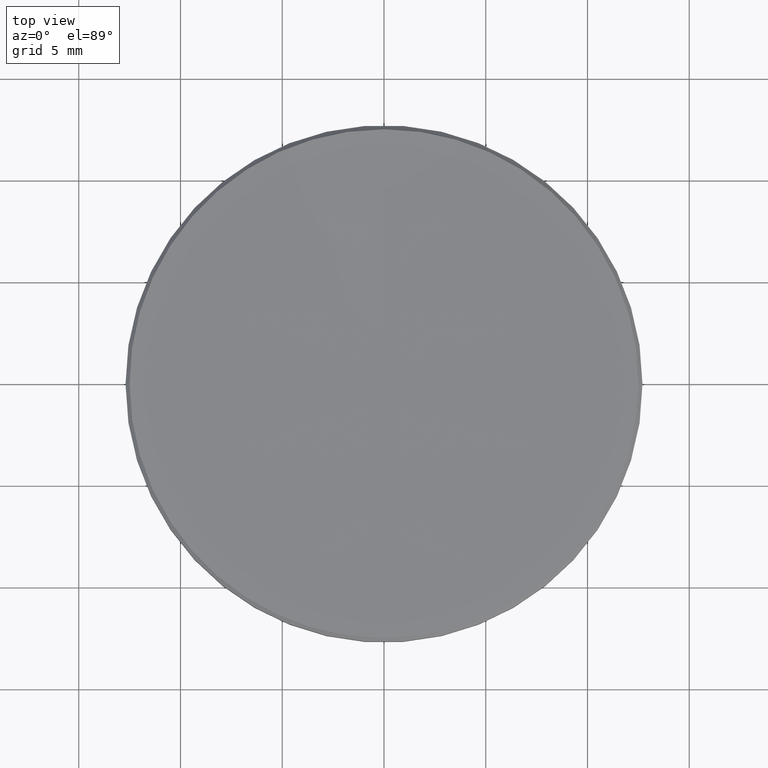
[diagram: clean part render]
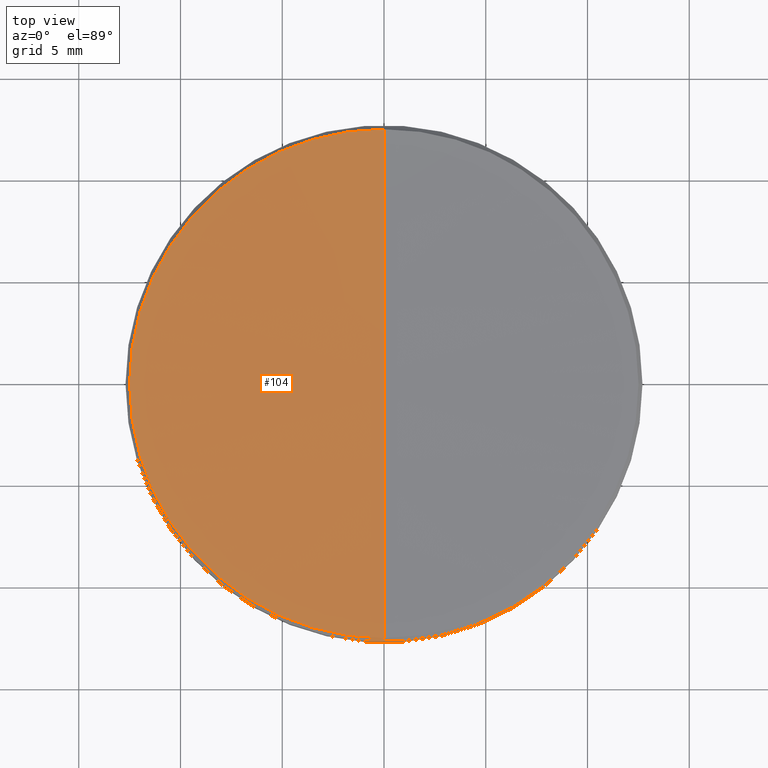
[diagram: same view with one face highlighted and labeled with its STEP entity id]
A machine part, top view. The second image highlights one B-rep face of the part: STEP entity #104.
In plain terms, the highlighted spherical surface has radius 1425.69 mm.
Its self-contained STEP definition (entity closure, byte-faithful):
#9 = CIRCLE ( 'NONE', #90, 1425.690000000000055 ) ;
#15 = DIRECTION ( 'NONE',  ( -1.000000000000000000, 0.000000000000000000, 0.000000000000000000 ) ) ;
#25 = ORIENTED_EDGE ( 'NONE', *, *, #280, .T. ) ;
#32 = CARTESIAN_POINT ( 'NONE',  ( 0.000000000000000000, 0.000000000000000000, 1431.633433285008550 ) ) ;
#36 = VERTEX_POINT ( 'NONE', #55 ) ;
#41 = CARTESIAN_POINT ( 'NONE',  ( -1.531023090019318822E-15, -12.50175226918713633, 5.998247730793604404 ) ) ;
#51 = ORIENTED_EDGE ( 'NONE', *, *, #320, .T. ) ;
#55 = CARTESIAN_POINT ( 'NONE',  ( 0.000000000000000000, 8.729833475381951565E-14, 5.943433285008348221 ) ) ;
#60 = DIRECTION ( 'NONE',  ( 1.000000000000000000, 0.000000000000000000, 0.000000000000000000 ) ) ;
#78 = VERTEX_POINT ( 'NONE', #112 ) ;
#83 = EDGE_LOOP ( 'NONE', ( #187, #135, #51, #25 ) ) ;
#84 = DIRECTION ( 'NONE',  ( 0.000000000000000000, 1.000000000000000000, 0.000000000000000000 ) ) ;
#87 = CARTESIAN_POINT ( 'NONE',  ( 0.000000000000000000, 0.000000000000000000, 1431.633433285008550 ) ) ;
#90 = AXIS2_PLACEMENT_3D ( 'NONE', #194, #60, #213 ) ;
#100 = DIRECTION ( 'NONE',  ( -0.000000000000000000, -0.000000000000000000, 1.000000000000000000 ) ) ;
#104 = ADVANCED_FACE ( 'NONE', ( #189 ), #242, .F. ) ;
#107 = EDGE_CURVE ( 'NONE', #36, #151, #169, .T. ) ;
#109 = AXIS2_PLACEMENT_3D ( 'NONE', #252, #125, #120 ) ;
#112 = CARTESIAN_POINT ( 'NONE',  ( -12.50175226920632809, 0.000000000000000000, 5.998247730793604404 ) ) ;
#113 = DIRECTION ( 'NONE',  ( -1.224646799147353454E-16, -1.000000000000000000, 0.000000000000000000 ) ) ;
#120 = DIRECTION ( 'NONE',  ( 1.000000000000000000, 0.000000000000000000, 0.000000000000000000 ) ) ;
#122 = EDGE_CURVE ( 'NONE', #36, #304, #9, .T. ) ;
#125 = DIRECTION ( 'NONE',  ( -0.000000000000000000, -0.000000000000000000, 1.000000000000000000 ) ) ;
#135 = ORIENTED_EDGE ( 'NONE', *, *, #122, .T. ) ;
#151 = VERTEX_POINT ( 'NONE', #41 ) ;
#169 = CIRCLE ( 'NONE', #300, 1425.690000000000055 ) ;
#187 = ORIENTED_EDGE ( 'NONE', *, *, #107, .F. ) ;
#189 = FACE_OUTER_BOUND ( 'NONE', #83, .T. ) ;
#194 = CARTESIAN_POINT ( 'NONE',  ( 0.000000000000000000, 0.000000000000000000, 1431.633433285008550 ) ) ;
#213 = DIRECTION ( 'NONE',  ( 0.000000000000000000, 0.000000000000000000, -1.000000000000000000 ) ) ;
#221 = DIRECTION ( 'NONE',  ( 1.000000000000000000, 0.000000000000000000, 0.000000000000000000 ) ) ;
#227 = CARTESIAN_POINT ( 'NONE',  ( 0.000000000000000000, 0.000000000000000000, 5.998247730793604404 ) ) ;
#238 = DIRECTION ( 'NONE',  ( -1.000000000000000000, 1.224646799147353207E-16, 0.000000000000000000 ) ) ;
#242 = SPHERICAL_SURFACE ( 'NONE', #283, 1425.690000000000055 ) ;
#246 = AXIS2_PLACEMENT_3D ( 'NONE', #227, #100, #221 ) ;
#249 = CARTESIAN_POINT ( 'NONE',  ( 0.000000000000000000, 12.50175226918713633, 5.998247730793604404 ) ) ;
#252 = CARTESIAN_POINT ( 'NONE',  ( 0.000000000000000000, 0.000000000000000000, 5.998247730793604404 ) ) ;
#280 = EDGE_CURVE ( 'NONE', #78, #151, #305, .T. ) ;
#283 = AXIS2_PLACEMENT_3D ( 'NONE', #32, #15, #84 ) ;
#300 = AXIS2_PLACEMENT_3D ( 'NONE', #87, #238, #113 ) ;
#304 = VERTEX_POINT ( 'NONE', #249 ) ;
#305 = CIRCLE ( 'NONE', #109, 12.50175226920632809 ) ;
#311 = CIRCLE ( 'NONE', #246, 12.50175226920632809 ) ;
#320 = EDGE_CURVE ( 'NONE', #304, #78, #311, .T. ) ;